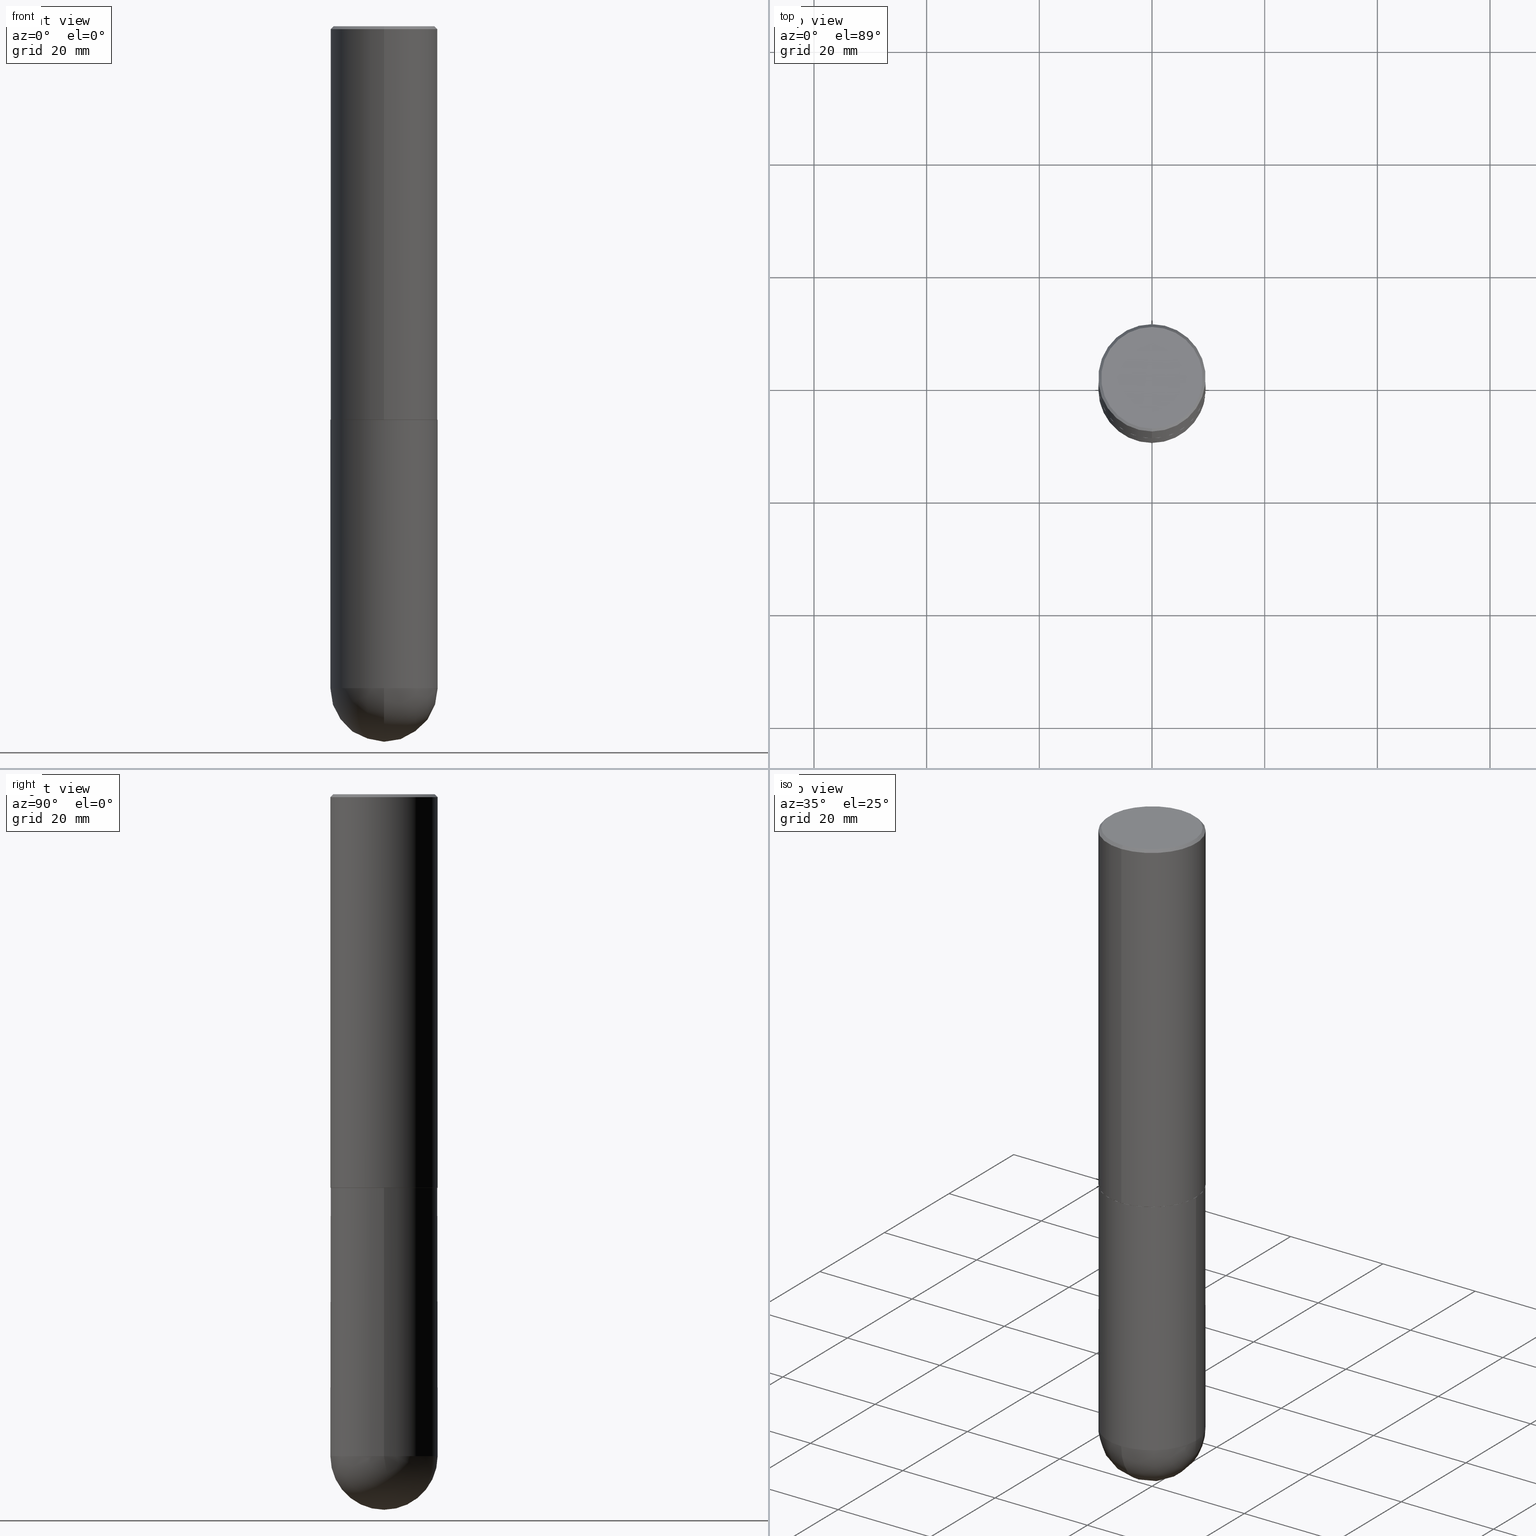
[diagram: canonical four-view strip — front | top / right | iso, engineering-drawing reading convention]
A machine part, canonical four-view strip (front | top / right | iso — engineering-drawing reading convention). The complete STEP part file that produces these views, byte-faithful:
ISO-10303-21;
HEADER;
FILE_DESCRIPTION (( 'STEP AP203' ),
    '1' );
FILE_NAME ('33116.STEP',
    '2024-02-21T17:50:50',
    ( '' ),
    ( '' ),
    'SwSTEP 2.0',
    'SolidWorks 2023',
    '' );
FILE_SCHEMA (( 'CONFIG_CONTROL_DESIGN' ));
ENDSEC;

DATA;
#1 = EDGE_LOOP ( 'NONE', ( #23, #118 ) ) ;
#2 = CIRCLE ( 'NONE', #322, 0.3739999999999999991 ) ;
#3 = APPLICATION_CONTEXT ( 'configuration controlled 3d designs of mechanical parts and assemblies' ) ;
#4 = VERTEX_POINT ( 'NONE', #304 ) ;
#5 = DIRECTION ( 'NONE',  ( -6.982962677686266711E-15, -1.000000000000000000, 3.492313078518903376E-15 ) ) ;
#6 = AXIS2_PLACEMENT_3D ( 'NONE', #104, #55, #289 ) ;
#7 = AXIS2_PLACEMENT_3D ( 'NONE', #391, #285, #170 ) ;
#8 = DIRECTION ( 'NONE',  ( -2.444888005473800237E-29, 3.492313078518902982E-15, 1.000000000000000000 ) ) ;
#9 = APPROVAL ( #294, 'UNSPECIFIED' ) ;
#10 = DIRECTION ( 'NONE',  ( -2.445468806185136877E-29, 3.491481338843145188E-15, 1.000000000000000000 ) ) ;
#11 = VECTOR ( 'NONE', #158, 39.37007874015748143 ) ;
#12 = APPROVAL_PERSON_ORGANIZATION ( #97, #67, #310 ) ;
#13 = ADVANCED_FACE ( 'NONE', ( #32 ), #184, .F. ) ;
#14 = DATE_TIME_ROLE ( 'creation_date' ) ;
#15 = AXIS2_PLACEMENT_3D ( 'NONE', #301, #339, #236 ) ;
#16 = CARTESIAN_POINT ( 'NONE',  ( 6.720997127047476541E-29, -9.600368652848465980E-15, -2.749000000000000110 ) ) ;
#17 = CARTESIAN_POINT ( 'NONE',  ( 6.725039217009124520E-29, -9.601573681818649859E-15, -2.750000000000000000 ) ) ;
#18 = COORDINATED_UNIVERSAL_TIME_OFFSET ( 5, 0, .BEHIND. ) ;
#19 = VERTEX_POINT ( 'NONE', #156 ) ;
#20 = DIRECTION ( 'NONE',  ( -6.982962677686265922E-15, -1.000000000000000000, 3.492313078518902587E-15 ) ) ;
#21 = DATE_AND_TIME ( #174, #22 ) ;
#22 = LOCAL_TIME ( 12, 50, 50.00000000000000000, #18 ) ;
#23 = ORIENTED_EDGE ( 'NONE', *, *, #76, .T. ) ;
#24 = DIRECTION ( 'NONE',  ( 1.000000000000000000, -6.982962677686265922E-15, 4.876176775795935793E-29 ) ) ;
#25 = EDGE_LOOP ( 'NONE', ( #297, #342, #185, #274 ) ) ;
#26 =( CONVERSION_BASED_UNIT ( 'INCH', #332 ) LENGTH_UNIT ( ) NAMED_UNIT ( #139 ) );
#27 = EDGE_LOOP ( 'NONE', ( #338, #171, #30, #54 ) ) ;
#28 = DIRECTION ( 'NONE',  ( -6.982962677686266711E-15, -1.000000000000000000, 2.921762560068730595E-15 ) ) ;
#29 = ORIENTED_EDGE ( 'NONE', *, *, #262, .F. ) ;
#30 = ORIENTED_EDGE ( 'NONE', *, *, #355, .F. ) ;
#31 = AXIS2_PLACEMENT_3D ( 'NONE', #75, #137, #326 ) ;
#32 = FACE_OUTER_BOUND ( 'NONE', #324, .T. ) ;
#33 = CIRCLE ( 'NONE', #241, 0.3750000000000004441 ) ;
#34 = VERTEX_POINT ( 'NONE', #93 ) ;
#35 = SECURITY_CLASSIFICATION ( '', '', #71 ) ;
#36 = DIRECTION ( 'NONE',  ( -1.000000000000000000, 6.982962677686266711E-15, -4.883557194083113462E-29 ) ) ;
#37 = ADVANCED_FACE ( 'NONE', ( #353 ), #226, .T. ) ;
#38 = AXIS2_PLACEMENT_3D ( 'NONE', #122, #127, #385 ) ;
#39 = COORDINATED_UNIVERSAL_TIME_OFFSET ( 5, 0, .BEHIND. ) ;
#40 = FACE_OUTER_BOUND ( 'NONE', #214, .T. ) ;
#41 = CONICAL_SURFACE ( 'NONE', #15, 0.3739999999999999991, 0.7853981633980288146 ) ;
#42 = CC_DESIGN_APPROVAL ( #172, ( #330 ) ) ;
#43 =( LENGTH_UNIT ( ) NAMED_UNIT ( * ) SI_UNIT ( $, .METRE. ) );
#44 = CALENDAR_DATE ( 2024, 21, 2 ) ;
#45 = CC_DESIGN_DATE_AND_TIME_ASSIGNMENT ( #361, #279, ( #35 ) ) ;
#46 = AXIS2_PLACEMENT_3D ( 'NONE', #333, #256, #228 ) ;
#47 = CC_DESIGN_APPROVAL ( #67, ( #35 ) ) ;
#48 = LINE ( 'NONE', #168, #208 ) ;
#49 =( NAMED_UNIT ( * ) SI_UNIT ( $, .STERADIAN. ) SOLID_ANGLE_UNIT ( ) );
#50 = DIRECTION ( 'NONE',  ( -2.444888005473800237E-29, 3.492313078518902982E-15, 1.000000000000000000 ) ) ;
#51 = DIRECTION ( 'NONE',  ( -2.445468806185136597E-29, 3.491481338843145583E-15, 1.000000000000000000 ) ) ;
#52 = ORIENTED_EDGE ( 'NONE', *, *, #311, .F. ) ;
#53 = DIRECTION ( 'NONE',  ( 2.444888005473799957E-29, -3.492313078518902982E-15, -1.000000000000000000 ) ) ;
#54 = ORIENTED_EDGE ( 'NONE', *, *, #286, .F. ) ;
#55 = DIRECTION ( 'NONE',  ( -2.444888005473799957E-29, 3.492313078518902982E-15, 1.000000000000000000 ) ) ;
#56 = EDGE_CURVE ( 'NONE', #175, #138, #252, .T. ) ;
#57 = CIRCLE ( 'NONE', #165, 0.3750000000000001110 ) ;
#58 = DIRECTION ( 'NONE',  ( 1.000000000000000000, -6.982962677686270655E-15, 0.000000000000000000 ) ) ;
#59 = ORIENTED_EDGE ( 'NONE', *, *, #178, .F. ) ;
#60 = EDGE_CURVE ( 'NONE', #175, #34, #161, .T. ) ;
#61 = DIRECTION ( 'NONE',  ( -6.982962677686265922E-15, -1.000000000000000000, 3.492313078518902982E-15 ) ) ;
#62 = COORDINATED_UNIVERSAL_TIME_OFFSET ( 5, 0, .BEHIND. ) ;
#63 = VECTOR ( 'NONE', #8, 39.37007874015748143 ) ;
#64 = EDGE_CURVE ( 'NONE', #19, #173, #393, .T. ) ;
#65 =( NAMED_UNIT ( * ) PLANE_ANGLE_UNIT ( ) SI_UNIT ( $, .RADIAN. ) );
#66 = LINE ( 'NONE', #121, #283 ) ;
#67 = APPROVAL ( #249, 'UNSPECIFIED' ) ;
#68 = DATE_AND_TIME ( #186, #360 ) ;
#69 = AXIS2_PLACEMENT_3D ( 'NONE', #388, #250, #318 ) ;
#70 =( GEOMETRIC_REPRESENTATION_CONTEXT ( 3 ) GLOBAL_UNCERTAINTY_ASSIGNED_CONTEXT ( ( #376 ) ) GLOBAL_UNIT_ASSIGNED_CONTEXT ( ( #26, #65, #49 ) ) REPRESENTATION_CONTEXT ( 'NONE', 'WORKASPACE' ) );
#71 = SECURITY_CLASSIFICATION_LEVEL ( 'unclassified' ) ;
#72 = CLOSED_SHELL ( 'NONE', ( #96, #234, #120, #181, #74, #81, #13, #390 ) ) ;
#73 = PERSON_AND_ORGANIZATION_ROLE ( 'creator' ) ;
#74 = ADVANCED_FACE ( 'NONE', ( #84 ), #254, .T. ) ;
#75 = CARTESIAN_POINT ( 'NONE',  ( -6.895002054019779943E-45, 9.848919785183189324E-31, 2.820170919315211210E-16 ) ) ;
#76 = EDGE_CURVE ( 'NONE', #335, #112, #354, .T. ) ;
#77 = CARTESIAN_POINT ( 'NONE',  ( 2.660982545421643429E-15, 0.3739999999999903957, -2.750000000000000444 ) ) ;
#78 = CARTESIAN_POINT ( 'NONE',  ( 0.000000000000000000, 0.000000000000000000, 0.000000000000000000 ) ) ;
#79 = ORIENTED_EDGE ( 'NONE', *, *, #227, .T. ) ;
#80 = LINE ( 'NONE', #177, #101 ) ;
#81 = ADVANCED_FACE ( 'NONE', ( #179 ), #41, .T. ) ;
#82 = DIRECTION ( 'NONE',  ( -2.445468806185136597E-29, 3.491481338843145583E-15, 1.000000000000000000 ) ) ;
#83 = ORIENTED_EDGE ( 'NONE', *, *, #355, .T. ) ;
#84 = FACE_OUTER_BOUND ( 'NONE', #264, .T. ) ;
#85 = DIRECTION ( 'NONE',  ( -4.851104656540959542E-15, -0.7071067811865493491, -0.7071067811865456854 ) ) ;
#86 = CIRCLE ( 'NONE', #69, 0.3750000000000001110 ) ;
#87 = ORIENTED_EDGE ( 'NONE', *, *, #220, .F. ) ;
#88 = DIRECTION ( 'NONE',  ( -7.105427357600999492E-15, -1.000000000000000000, 0.000000000000000000 ) ) ;
#89 = APPLICATION_PROTOCOL_DEFINITION ( 'international standard', 'config_control_design', 1994, #3 ) ;
#90 = ORIENTED_EDGE ( 'NONE', *, *, #162, .T. ) ;
#91 = CARTESIAN_POINT ( 'NONE',  ( 0.000000000000000000, 0.000000000000000000, 0.000000000000000000 ) ) ;
#92 = PERSON_AND_ORGANIZATION_ROLE ( 'design_owner' ) ;
#93 = CARTESIAN_POINT ( 'NONE',  ( -2.618611004132286119E-15, -0.3750000000000100475, -2.748999999999999222 ) ) ;
#94 = MANIFOLD_SOLID_BREP ( 'Body-Move/Copy2[1]', #305 ) ;
#95 = CARTESIAN_POINT ( 'NONE',  ( 1.097917345069237163E-28, -1.662228356028959886E-14, -4.625000000000000000 ) ) ;
#96 = ADVANCED_FACE ( 'NONE', ( #202 ), #132, .T. ) ;
#97 = PERSON_AND_ORGANIZATION ( #197, #230 ) ;
#98 = DIRECTION ( 'NONE',  ( 6.982962677686265922E-15, 1.000000000000000000, 0.000000000000000000 ) ) ;
#99 = APPLICATION_CONTEXT ( 'configuration controlled 3d designs of mechanical parts and assemblies' ) ;
#100 = PRODUCT_DEFINITION_SHAPE ( 'NONE', 'NONE',  #330 ) ;
#101 = VECTOR ( 'NONE', #141, 39.37007874015748143 ) ;
#102 = CC_DESIGN_DATE_AND_TIME_ASSIGNMENT ( #163, #14, ( #330 ) ) ;
#103 = CARTESIAN_POINT ( 'NONE',  ( 2.618611004132463218E-15, 0.3749999999999838463, -4.625000000000000888 ) ) ;
#104 = CARTESIAN_POINT ( 'NONE',  ( 4.889776010947621353E-31, -6.984626157037836483E-17, -0.02000000000000008715 ) ) ;
#105 = AXIS2_PLACEMENT_3D ( 'NONE', #95, #36, #215 ) ;
#106 = ORIENTED_EDGE ( 'NONE', *, *, #262, .T. ) ;
#107 = DIRECTION ( 'NONE',  ( 6.982962677686266711E-15, 1.000000000000000000, -3.494488891895537218E-15 ) ) ;
#108 = VERTEX_POINT ( 'NONE', #401 ) ;
#109 = ORIENTED_EDGE ( 'NONE', *, *, #227, .F. ) ;
#110 = DIRECTION ( 'NONE',  ( -6.982962677686266711E-15, -1.000000000000000000, 3.494488891895537218E-15 ) ) ;
#111 = DIRECTION ( 'NONE',  ( -2.444888005473799957E-29, 3.492313078518902982E-15, 1.000000000000000000 ) ) ;
#112 = VERTEX_POINT ( 'NONE', #239 ) ;
#113 = SPHERICAL_SURFACE ( 'NONE', #105, 0.3750000000000003886 ) ;
#114 = ORIENTED_EDGE ( 'NONE', *, *, #193, .T. ) ;
#115 = EDGE_CURVE ( 'NONE', #237, #138, #359, .T. ) ;
#116 = DIRECTION ( 'NONE',  ( 1.000000000000000000, -6.982962677686266711E-15, 0.000000000000000000 ) ) ;
#117 = AXIS2_PLACEMENT_3D ( 'NONE', #130, #281, #98 ) ;
#118 = ORIENTED_EDGE ( 'NONE', *, *, #220, .T. ) ;
#119 = PERSON_AND_ORGANIZATION ( #197, #230 ) ;
#120 = ADVANCED_FACE ( 'NONE', ( #147 ), #313, .T. ) ;
#121 = CARTESIAN_POINT ( 'NONE',  ( -2.611628041454596160E-15, -0.3740000000000096581, -2.749999999999998224 ) ) ;
#122 = CARTESIAN_POINT ( 'NONE',  ( 4.889776010947621353E-31, -6.984626157037836483E-17, -0.02000000000000008715 ) ) ;
#123 = DIRECTION ( 'NONE',  ( 6.982962677686266711E-15, 1.000000000000000000, -2.913971193241878005E-15 ) ) ;
#124 = FACE_OUTER_BOUND ( 'NONE', #136, .T. ) ;
#125 = PERSON_AND_ORGANIZATION ( #197, #230 ) ;
#126 = CIRCLE ( 'NONE', #187, 0.3739999999999999991 ) ;
#127 = DIRECTION ( 'NONE',  ( 2.444888005473799957E-29, -3.492313078518902982E-15, -1.000000000000000000 ) ) ;
#128 = AXIS2_PLACEMENT_3D ( 'NONE', #91, #347, #314 ) ;
#129 = APPROVAL_DATE_TIME ( #68, #172 ) ;
#130 = CARTESIAN_POINT ( 'NONE',  ( 1.097917345069237163E-28, -1.662228356028959886E-14, -4.625000000000000000 ) ) ;
#131 = EDGE_CURVE ( 'NONE', #232, #19, #57, .T. ) ;
#132 = CONICAL_SURFACE ( 'NONE', #334, 0.3739999999999999991, 0.7853981633980288146 ) ;
#133 = CYLINDRICAL_SURFACE ( 'NONE', #229, 0.3750000000000002220 ) ;
#134 = DIRECTION ( 'NONE',  ( -1.000000000000000000, 7.105427357601001070E-15, -4.926315508542082329E-29 ) ) ;
#135 = CARTESIAN_POINT ( 'NONE',  ( 6.723442015052948549E-29, -9.603860965926982214E-15, -2.749999999999999556 ) ) ;
#136 = EDGE_LOOP ( 'NONE', ( #83, #412, #155, #29 ) ) ;
#137 = DIRECTION ( 'NONE',  ( -2.444888005473799957E-29, 3.492313078518902982E-15, 1.000000000000000000 ) ) ;
#138 = VERTEX_POINT ( 'NONE', #370 ) ;
#139 = DIMENSIONAL_EXPONENTS ( 1.000000000000000000, 0.000000000000000000, 0.000000000000000000, 0.000000000000000000, 0.000000000000000000, 0.000000000000000000, 0.000000000000000000 ) ;
#140 = DIRECTION ( 'NONE',  ( 2.444888005473799676E-29, -3.492313078518902982E-15, -1.000000000000000000 ) ) ;
#141 = DIRECTION ( 'NONE',  ( -2.445468806185136877E-29, 3.491481338843145188E-15, 1.000000000000000000 ) ) ;
#142 = CARTESIAN_POINT ( 'NONE',  ( 6.723442015052948549E-29, -9.603860965926982214E-15, -2.749999999999999556 ) ) ;
#143 = ORIENTED_EDGE ( 'NONE', *, *, #131, .F. ) ;
#144 = EDGE_CURVE ( 'NONE', #4, #108, #247, .T. ) ;
#145 = PLANE ( 'NONE',  #46 ) ;
#146 = ORIENTED_EDGE ( 'NONE', *, *, #178, .T. ) ;
#147 = FACE_OUTER_BOUND ( 'NONE', #404, .T. ) ;
#148 = ORIENTED_EDGE ( 'NONE', *, *, #144, .F. ) ;
#149 = FACE_OUTER_BOUND ( 'NONE', #369, .T. ) ;
#150 = ORIENTED_EDGE ( 'NONE', *, *, #131, .T. ) ;
#151 = DIRECTION ( 'NONE',  ( -2.444888005473799957E-29, 3.492313078518902982E-15, 1.000000000000000000 ) ) ;
#152 = AXIS2_PLACEMENT_3D ( 'NONE', #176, #410, #110 ) ;
#153 = AXIS2_PLACEMENT_3D ( 'NONE', #364, #51, #290 ) ;
#154 = AXIS2_PLACEMENT_3D ( 'NONE', #295, #140, #263 ) ;
#155 = ORIENTED_EDGE ( 'NONE', *, *, #115, .F. ) ;
#156 = CARTESIAN_POINT ( 'NONE',  ( -2.664535259100265651E-15, -0.3750000000000165978, -4.624999999999999112 ) ) ;
#157 = EDGE_CURVE ( 'NONE', #269, #19, #240, .T. ) ;
#158 = DIRECTION ( 'NONE',  ( 4.937700262164543309E-15, 0.7071067811865444641, -0.7071067811865505703 ) ) ;
#159 = COORDINATED_UNIVERSAL_TIME_OFFSET ( 5, 0, .BEHIND. ) ;
#160 = PERSON_AND_ORGANIZATION_ROLE ( 'creator' ) ;
#161 = CIRCLE ( 'NONE', #392, 0.3750000000000004441 ) ;
#162 = EDGE_CURVE ( 'NONE', #232, #108, #80, .T. ) ;
#163 = DATE_AND_TIME ( #319, #222 ) ;
#164 = CARTESIAN_POINT ( 'NONE',  ( 0.3750000000000001110, -2.618611004132350411E-15, 1.828566290923476483E-29 ) ) ;
#165 = AXIS2_PLACEMENT_3D ( 'NONE', #268, #405, #231 ) ;
#166 = CARTESIAN_POINT ( 'NONE',  ( -6.895002054019779943E-45, 9.848919785183189324E-31, 2.820170919315211210E-16 ) ) ;
#167 = CC_DESIGN_APPROVAL ( #9, ( #277 ) ) ;
#168 = CARTESIAN_POINT ( 'NONE',  ( 2.657429831742841742E-15, 0.3739999999999903957, -2.750000000000000444 ) ) ;
#169 = DIRECTION ( 'NONE',  ( -2.444888005473799957E-29, 3.492313078518902982E-15, 1.000000000000000000 ) ) ;
#170 = DIRECTION ( 'NONE',  ( 1.000000000000000000, -6.982962677686270655E-15, 0.000000000000000000 ) ) ;
#171 = ORIENTED_EDGE ( 'NONE', *, *, #345, .T. ) ;
#172 = APPROVAL ( #243, 'UNSPECIFIED' ) ;
#173 = VERTEX_POINT ( 'NONE', #265 ) ;
#174 = CALENDAR_DATE ( 2024, 21, 2 ) ;
#175 = VERTEX_POINT ( 'NONE', #282 ) ;
#176 = CARTESIAN_POINT ( 'NONE',  ( 4.889776010947621353E-31, -6.984626157037836483E-17, -0.02000000000000008715 ) ) ;
#177 = CARTESIAN_POINT ( 'NONE',  ( -0.3750000000000001110, 2.664535259100376486E-15, -1.844600658845590159E-29 ) ) ;
#178 = EDGE_CURVE ( 'NONE', #138, #237, #190, .T. ) ;
#179 = FACE_OUTER_BOUND ( 'NONE', #375, .T. ) ;
#180 = ORIENTED_EDGE ( 'NONE', *, *, #374, .F. ) ;
#181 = ADVANCED_FACE ( 'NONE', ( #306 ), #207, .T. ) ;
#182 = ORIENTED_EDGE ( 'NONE', *, *, #60, .F. ) ;
#183 = CARTESIAN_POINT ( 'NONE',  ( -2.618611004132351594E-15, -0.3750000000000002220, 1.309617404444589506E-15 ) ) ;
#184 = PLANE ( 'NONE',  #225 ) ;
#185 = ORIENTED_EDGE ( 'NONE', *, *, #337, .F. ) ;
#186 = CALENDAR_DATE ( 2024, 21, 2 ) ;
#187 = AXIS2_PLACEMENT_3D ( 'NONE', #142, #266, #408 ) ;
#188 = LOCAL_TIME ( 12, 50, 50.00000000000000000, #159 ) ;
#189 = ADVANCED_FACE ( 'NONE', ( #149 ), #145, .F. ) ;
#190 = CIRCLE ( 'NONE', #152, 0.3749999999999999445 ) ;
#191 = EDGE_CURVE ( 'NONE', #108, #4, #396, .T. ) ;
#192 = DATE_AND_TIME ( #312, #394 ) ;
#193 = EDGE_CURVE ( 'NONE', #372, #232, #86, .T. ) ;
#194 = CARTESIAN_POINT ( 'NONE',  ( 1.097917345069237163E-28, -1.662228356028959886E-14, -4.625000000000000000 ) ) ;
#195 = EDGE_CURVE ( 'NONE', #269, #372, #287, .T. ) ;
#196 = FACE_OUTER_BOUND ( 'NONE', #1, .T. ) ;
#197 = PERSON ( 'UNSPECIFIED', 'UNSPECIFIED', 'UNSPECIFIED', ('UNSPECIFIED'), ('UNSPECIFIED'), ('UNSPECIFIED') ) ;
#198 = VECTOR ( 'NONE', #85, 39.37007874015748143 ) ;
#199 = ORIENTED_EDGE ( 'NONE', *, *, #345, .F. ) ;
#200 = CARTESIAN_POINT ( 'NONE',  ( -2.572686749164323153E-15, -0.3750000000000000555, -0.01999999999999877570 ) ) ;
#201 = ORIENTED_EDGE ( 'NONE', *, *, #157, .T. ) ;
#202 = FACE_OUTER_BOUND ( 'NONE', #27, .T. ) ;
#203 = ORIENTED_EDGE ( 'NONE', *, *, #56, .F. ) ;
#204 = VERTEX_POINT ( 'NONE', #356 ) ;
#205 = CARTESIAN_POINT ( 'NONE',  ( 1.131029322860625676E-28, -1.614810119214955014E-14, -4.625000000000000000 ) ) ;
#206 = ADVANCED_FACE ( 'NONE', ( #40 ), #212, .T. ) ;
#207 = CONICAL_SURFACE ( 'NONE', #38, 0.3749999999999999445, 0.7853981633974473908 ) ;
#208 = VECTOR ( 'NONE', #320, 39.37007874015748143 ) ;
#209 = ORIENTED_EDGE ( 'NONE', *, *, #245, .F. ) ;
#210 = DIRECTION ( 'NONE',  ( -6.982962677686265922E-15, -1.000000000000000000, 2.913971193241877216E-15 ) ) ;
#211 = ORIENTED_EDGE ( 'NONE', *, *, #245, .T. ) ;
#212 = CYLINDRICAL_SURFACE ( 'NONE', #153, 0.3750000000000001110 ) ;
#213 = CARTESIAN_POINT ( 'NONE',  ( 6.723442015052949670E-29, -9.603860965926983792E-15, -2.750000000000000000 ) ) ;
#214 = EDGE_LOOP ( 'NONE', ( #244, #150, #380, #233, #242 ) ) ;
#215 = DIRECTION ( 'NONE',  ( 6.982962677686266711E-15, 1.000000000000000000, -2.913971193241878005E-15 ) ) ;
#216 = EDGE_CURVE ( 'NONE', #112, #237, #255, .T. ) ;
#217 = APPLICATION_PROTOCOL_DEFINITION ( 'international standard', 'config_control_design', 1994, #99 ) ;
#218 = AXIS2_PLACEMENT_3D ( 'NONE', #205, #336, #58 ) ;
#219 = CARTESIAN_POINT ( 'NONE',  ( -2.572686749164323153E-15, -0.3750000000000000555, -0.01999999999999877570 ) ) ;
#220 = EDGE_CURVE ( 'NONE', #112, #335, #317, .T. ) ;
#221 = ADVANCED_FACE ( 'NONE', ( #260 ), #406, .T. ) ;
#222 = LOCAL_TIME ( 12, 50, 50.00000000000000000, #316 ) ;
#223 = PERSON_AND_ORGANIZATION ( #197, #230 ) ;
#224 = MANIFOLD_SOLID_BREP ( 'Body-Move/Copy2[2]', #72 ) ;
#225 = AXIS2_PLACEMENT_3D ( 'NONE', #213, #341, #61 ) ;
#226 = SPHERICAL_SURFACE ( 'NONE', #307, 0.3750000000000003886 ) ;
#227 = EDGE_CURVE ( 'NONE', #381, #204, #126, .T. ) ;
#228 = DIRECTION ( 'NONE',  ( -1.000000000000000000, 6.982962677686265922E-15, -4.876176775795935793E-29 ) ) ;
#229 = AXIS2_PLACEMENT_3D ( 'NONE', #387, #151, #5 ) ;
#230 = ORGANIZATION ( 'UNSPECIFIED', 'UNSPECIFIED', '' ) ;
#231 = DIRECTION ( 'NONE',  ( 1.000000000000000000, -6.982962677686270655E-15, 0.000000000000000000 ) ) ;
#232 = VERTEX_POINT ( 'NONE', #383 ) ;
#233 = ORIENTED_EDGE ( 'NONE', *, *, #311, .T. ) ;
#234 = ADVANCED_FACE ( 'NONE', ( #124 ), #133, .T. ) ;
#235 = ORIENTED_EDGE ( 'NONE', *, *, #115, .T. ) ;
#236 = DIRECTION ( 'NONE',  ( -6.982962677686266711E-15, -1.000000000000000000, 2.921762560068730595E-15 ) ) ;
#237 = VERTEX_POINT ( 'NONE', #219 ) ;
#238 = ORIENTED_EDGE ( 'NONE', *, *, #191, .T. ) ;
#239 = CARTESIAN_POINT ( 'NONE',  ( -2.504081769186607427E-15, -0.3549999999999996492, 1.521788234805730129E-15 ) ) ;
#240 = CIRCLE ( 'NONE', #272, 0.3750000000000003886 ) ;
#241 = AXIS2_PLACEMENT_3D ( 'NONE', #16, #253, #292 ) ;
#242 = ORIENTED_EDGE ( 'NONE', *, *, #191, .F. ) ;
#243 = APPROVAL_STATUS ( 'not_yet_approved' ) ;
#244 = ORIENTED_EDGE ( 'NONE', *, *, #162, .F. ) ;
#245 = EDGE_CURVE ( 'NONE', #335, #138, #275, .T. ) ;
#246 = DIRECTION ( 'NONE',  ( -4.937700262167413974E-15, -0.7071067811869555797, 0.7071067811861394548 ) ) ;
#247 = CIRCLE ( 'NONE', #276, 0.3750000000000000555 ) ;
#248 = SHAPE_DEFINITION_REPRESENTATION ( #100, #400 ) ;
#249 = APPROVAL_STATUS ( 'not_yet_approved' ) ;
#250 = DIRECTION ( 'NONE',  ( -2.445468806185136597E-29, 3.491481338843145583E-15, 1.000000000000000000 ) ) ;
#251 = AXIS2_PLACEMENT_3D ( 'NONE', #403, #377, #273 ) ;
#252 = LINE ( 'NONE', #357, #296 ) ;
#253 = DIRECTION ( 'NONE',  ( -2.444888005473799957E-29, 3.492313078518902982E-15, 1.000000000000000000 ) ) ;
#254 = CYLINDRICAL_SURFACE ( 'NONE', #257, 0.3750000000000002220 ) ;
#255 = LINE ( 'NONE', #200, #198 ) ;
#256 = DIRECTION ( 'NONE',  ( 2.438088387897960049E-29, -3.491481338843145188E-15, -1.000000000000000000 ) ) ;
#257 = AXIS2_PLACEMENT_3D ( 'NONE', #78, #111, #323 ) ;
#258 = ORIENTED_EDGE ( 'NONE', *, *, #195, .F. ) ;
#259 = DIRECTION ( 'NONE',  ( -2.444888005473799957E-29, 3.492313078518902982E-15, 1.000000000000000000 ) ) ;
#260 = FACE_OUTER_BOUND ( 'NONE', #329, .T. ) ;
#261 = APPROVAL_DATE_TIME ( #21, #9 ) ;
#262 = EDGE_CURVE ( 'NONE', #34, #237, #280, .T. ) ;
#263 = DIRECTION ( 'NONE',  ( 6.982962677686265922E-15, 1.000000000000000000, -3.492313078518902982E-15 ) ) ;
#264 = EDGE_LOOP ( 'NONE', ( #203, #267, #106, #59 ) ) ;
#265 = CARTESIAN_POINT ( 'NONE',  ( 0.3750000000000001110, -1.549344844111645238E-14, -4.625000000000000000 ) ) ;
#266 = DIRECTION ( 'NONE',  ( -2.444888005473799957E-29, 3.492313078518902982E-15, 1.000000000000000000 ) ) ;
#267 = ORIENTED_EDGE ( 'NONE', *, *, #60, .T. ) ;
#268 = CARTESIAN_POINT ( 'NONE',  ( 1.131029322860625676E-28, -1.614810119214955014E-14, -4.625000000000000000 ) ) ;
#269 = VERTEX_POINT ( 'NONE', #350 ) ;
#270 = LINE ( 'NONE', #164, #343 ) ;
#271 = ORIENTED_EDGE ( 'NONE', *, *, #216, .T. ) ;
#272 = AXIS2_PLACEMENT_3D ( 'NONE', #411, #134, #88 ) ;
#273 = DIRECTION ( 'NONE',  ( 1.000000000000000000, -6.982962677686266711E-15, 0.000000000000000000 ) ) ;
#274 = ORIENTED_EDGE ( 'NONE', *, *, #64, .F. ) ;
#275 = LINE ( 'NONE', #346, #11 ) ;
#276 = AXIS2_PLACEMENT_3D ( 'NONE', #17, #379, #116 ) ;
#277 = PRODUCT_DEFINITION_FORMATION_WITH_SPECIFIED_SOURCE ( 'ANY', '', #398, .NOT_KNOWN. ) ;
#278 = CC_DESIGN_PERSON_AND_ORGANIZATION_ASSIGNMENT ( #389, #352, ( #35 ) ) ;
#279 = DATE_TIME_ROLE ( 'classification_date' ) ;
#280 = LINE ( 'NONE', #183, #63 ) ;
#281 = DIRECTION ( 'NONE',  ( 1.000000000000000000, -6.982962677686265922E-15, 4.883557194083112340E-29 ) ) ;
#282 = CARTESIAN_POINT ( 'NONE',  ( 2.664535259100411196E-15, 0.3749999999999907851, -2.749000000000000998 ) ) ;
#283 = VECTOR ( 'NONE', #246, 39.37007874015748143 ) ;
#284 = CC_DESIGN_PERSON_AND_ORGANIZATION_ASSIGNMENT ( #125, #351, ( #277 ) ) ;
#285 = DIRECTION ( 'NONE',  ( -2.445468806185136597E-29, 3.491481338843145583E-15, 1.000000000000000000 ) ) ;
#286 = EDGE_CURVE ( 'NONE', #204, #34, #66, .T. ) ;
#287 = CIRCLE ( 'NONE', #117, 0.3750000000000003886 ) ;
#288 = APPROVAL_PERSON_ORGANIZATION ( #344, #172, #382 ) ;
#289 = DIRECTION ( 'NONE',  ( -6.982962677686266711E-15, -1.000000000000000000, 3.494488891895537218E-15 ) ) ;
#290 = DIRECTION ( 'NONE',  ( 1.000000000000000000, -6.982962677686265922E-15, 4.876176775795935793E-29 ) ) ;
#291 = CARTESIAN_POINT ( 'NONE',  ( 4.889776010947621353E-31, -6.984626157037836483E-17, -0.02000000000000008715 ) ) ;
#292 = DIRECTION ( 'NONE',  ( -6.982962677686265922E-15, -1.000000000000000000, 2.913971193241877216E-15 ) ) ;
#293 = ORIENTED_EDGE ( 'NONE', *, *, #286, .T. ) ;
#294 = APPROVAL_STATUS ( 'not_yet_approved' ) ;
#295 = CARTESIAN_POINT ( 'NONE',  ( 2.478951750578621842E-15, 0.3549999999999996492, -1.098762596908448645E-15 ) ) ;
#296 = VECTOR ( 'NONE', #50, 39.37007874015748143 ) ;
#297 = ORIENTED_EDGE ( 'NONE', *, *, #157, .F. ) ;
#298 = CC_DESIGN_SECURITY_CLASSIFICATION ( #35, ( #277 ) ) ;
#299 = DIRECTION ( 'NONE',  ( -2.444888005473799957E-29, 3.492313078518902982E-15, 1.000000000000000000 ) ) ;
#300 = ORIENTED_EDGE ( 'NONE', *, *, #76, .F. ) ;
#301 = CARTESIAN_POINT ( 'NONE',  ( 6.723442015052948549E-29, -9.603860965926982214E-15, -2.749999999999999556 ) ) ;
#302 = ADVANCED_FACE ( 'NONE', ( #362 ), #113, .T. ) ;
#303 = ORIENTED_EDGE ( 'NONE', *, *, #193, .F. ) ;
#304 = CARTESIAN_POINT ( 'NONE',  ( 0.3750000000000000555, -1.222018468595100145E-14, -2.750000000000000000 ) ) ;
#305 = CLOSED_SHELL ( 'NONE', ( #221, #302, #37, #189, #206 ) ) ;
#306 = FACE_OUTER_BOUND ( 'NONE', #407, .T. ) ;
#307 = AXIS2_PLACEMENT_3D ( 'NONE', #194, #358, #123 ) ;
#308 = MECHANICAL_CONTEXT ( 'NONE', #3, 'mechanical' ) ;
#309 = EDGE_LOOP ( 'NONE', ( #258, #201, #143, #303 ) ) ;
#310 = APPROVAL_ROLE ( '' ) ;
#311 = EDGE_CURVE ( 'NONE', #173, #4, #270, .T. ) ;
#312 = CALENDAR_DATE ( 2024, 21, 2 ) ;
#313 = CONICAL_SURFACE ( 'NONE', #378, 0.3749999999999999445, 0.7853981633974473908 ) ;
#314 = DIRECTION ( 'NONE',  ( 1.000000000000000000, 0.000000000000000000, 0.000000000000000000 ) ) ;
#315 = DESIGN_CONTEXT ( 'detailed design', #99, 'design' ) ;
#316 = COORDINATED_UNIVERSAL_TIME_OFFSET ( 5, 0, .BEHIND. ) ;
#317 = CIRCLE ( 'NONE', #31, 0.3549999999999996492 ) ;
#318 = DIRECTION ( 'NONE',  ( 1.000000000000000000, -6.982962677686270655E-15, 0.000000000000000000 ) ) ;
#319 = CALENDAR_DATE ( 2024, 21, 2 ) ;
#320 = DIRECTION ( 'NONE',  ( 5.024295867790978808E-15, 0.7071067811869604647, 0.7071067811861345698 ) ) ;
#321 = AXIS2_PLACEMENT_3D ( 'NONE', #166, #169, #20 ) ;
#322 = AXIS2_PLACEMENT_3D ( 'NONE', #135, #367, #363 ) ;
#323 = DIRECTION ( 'NONE',  ( -6.982962677686266711E-15, -1.000000000000000000, 3.492313078518903376E-15 ) ) ;
#324 = EDGE_LOOP ( 'NONE', ( #180, #109 ) ) ;
#325 = CARTESIAN_POINT ( 'NONE',  ( 6.720997127047476541E-29, -9.600368652848465980E-15, -2.749000000000000110 ) ) ;
#326 = DIRECTION ( 'NONE',  ( -6.982962677686265922E-15, -1.000000000000000000, 3.492313078518902587E-15 ) ) ;
#327 = PERSON_AND_ORGANIZATION ( #197, #230 ) ;
#328 = PLANE ( 'NONE',  #154 ) ;
#329 = EDGE_LOOP ( 'NONE', ( #114, #90, #148, #52, #409 ) ) ;
#330 = PRODUCT_DEFINITION ( 'UNKNOWN', '', #277, #315 ) ;
#331 = CARTESIAN_POINT ( 'NONE',  ( 6.723442015052948549E-29, -9.603860965926982214E-15, -2.749999999999999556 ) ) ;
#332 = LENGTH_MEASURE_WITH_UNIT ( LENGTH_MEASURE( 0.02539999999999999897 ), #43 );
#333 = CARTESIAN_POINT ( 'NONE',  ( 2.618611004132417464E-15, 0.3749999999999903966, -2.750000000000000888 ) ) ;
#334 = AXIS2_PLACEMENT_3D ( 'NONE', #331, #259, #28 ) ;
#335 = VERTEX_POINT ( 'NONE', #348 ) ;
#336 = DIRECTION ( 'NONE',  ( -2.445468806185136597E-29, 3.491481338843145583E-15, 1.000000000000000000 ) ) ;
#337 = EDGE_CURVE ( 'NONE', #173, #372, #386, .T. ) ;
#338 = ORIENTED_EDGE ( 'NONE', *, *, #374, .T. ) ;
#339 = DIRECTION ( 'NONE',  ( -2.444888005473799957E-29, 3.492313078518902982E-15, 1.000000000000000000 ) ) ;
#340 = PRODUCT_RELATED_PRODUCT_CATEGORY ( 'detail', '', ( #398 ) ) ;
#341 = DIRECTION ( 'NONE',  ( -2.444888005473799676E-29, 3.492313078518902982E-15, 1.000000000000000000 ) ) ;
#342 = ORIENTED_EDGE ( 'NONE', *, *, #195, .T. ) ;
#343 = VECTOR ( 'NONE', #10, 39.37007874015748143 ) ;
#344 = PERSON_AND_ORGANIZATION ( #197, #230 ) ;
#345 = EDGE_CURVE ( 'NONE', #381, #175, #48, .T. ) ;
#346 = CARTESIAN_POINT ( 'NONE',  ( 2.618611004132350016E-15, 0.3749999999999998890, -0.02000000000000139513 ) ) ;
#347 = DIRECTION ( 'NONE',  ( 0.000000000000000000, 0.000000000000000000, 1.000000000000000000 ) ) ;
#348 = CARTESIAN_POINT ( 'NONE',  ( 2.548781377355486324E-15, 0.3549999999999996492, -9.577540509426880847E-16 ) ) ;
#349 = CC_DESIGN_PERSON_AND_ORGANIZATION_ASSIGNMENT ( #223, #160, ( #277 ) ) ;
#350 = CARTESIAN_POINT ( 'NONE',  ( 1.191225862093391378E-28, -1.790862693487176734E-14, -5.000000000000000000 ) ) ;
#351 = PERSON_AND_ORGANIZATION_ROLE ( 'design_supplier' ) ;
#352 = PERSON_AND_ORGANIZATION_ROLE ( 'classification_officer' ) ;
#353 = FACE_OUTER_BOUND ( 'NONE', #25, .T. ) ;
#354 = CIRCLE ( 'NONE', #321, 0.3549999999999996492 ) ;
#355 = EDGE_CURVE ( 'NONE', #34, #175, #33, .T. ) ;
#356 = CARTESIAN_POINT ( 'NONE',  ( -2.611628041454596160E-15, -0.3740000000000096581, -2.749999999999998224 ) ) ;
#357 = CARTESIAN_POINT ( 'NONE',  ( 2.664535259100376880E-15, 0.3750000000000002220, -1.309617404444589506E-15 ) ) ;
#358 = DIRECTION ( 'NONE',  ( -1.000000000000000000, 6.982962677686266711E-15, -4.883557194083113462E-29 ) ) ;
#359 = CIRCLE ( 'NONE', #6, 0.3749999999999999445 ) ;
#360 = LOCAL_TIME ( 12, 50, 50.00000000000000000, #62 ) ;
#361 = DATE_AND_TIME ( #44, #188 ) ;
#362 = FACE_OUTER_BOUND ( 'NONE', #309, .T. ) ;
#363 = DIRECTION ( 'NONE',  ( -6.982962677686266711E-15, -1.000000000000000000, 2.921762560068730595E-15 ) ) ;
#364 = CARTESIAN_POINT ( 'NONE',  ( 0.000000000000000000, 0.000000000000000000, 0.000000000000000000 ) ) ;
#365 = AXIS2_PLACEMENT_3D ( 'NONE', #371, #82, #24 ) ;
#366 = ORIENTED_EDGE ( 'NONE', *, *, #144, .T. ) ;
#367 = DIRECTION ( 'NONE',  ( -2.444888005473799957E-29, 3.492313078518902982E-15, 1.000000000000000000 ) ) ;
#368 = CC_DESIGN_PERSON_AND_ORGANIZATION_ASSIGNMENT ( #119, #92, ( #398 ) ) ;
#369 = EDGE_LOOP ( 'NONE', ( #366, #238 ) ) ;
#370 = CARTESIAN_POINT ( 'NONE',  ( 2.618611004132350016E-15, 0.3749999999999998890, -0.02000000000000139513 ) ) ;
#371 = CARTESIAN_POINT ( 'NONE',  ( 0.000000000000000000, 0.000000000000000000, 0.000000000000000000 ) ) ;
#372 = VERTEX_POINT ( 'NONE', #103 ) ;
#373 = ORIENTED_EDGE ( 'NONE', *, *, #216, .F. ) ;
#374 = EDGE_CURVE ( 'NONE', #204, #381, #2, .T. ) ;
#375 = EDGE_LOOP ( 'NONE', ( #199, #79, #293, #182 ) ) ;
#376 = UNCERTAINTY_MEASURE_WITH_UNIT (LENGTH_MEASURE( 1.000000000000000082E-05 ), #26, 'distance_accuracy_value', 'NONE');
#377 = DIRECTION ( 'NONE',  ( -2.445468806185136597E-29, 3.491481338843145583E-15, 1.000000000000000000 ) ) ;
#378 = AXIS2_PLACEMENT_3D ( 'NONE', #291, #53, #107 ) ;
#379 = DIRECTION ( 'NONE',  ( -2.445468806185136597E-29, 3.491481338843145583E-15, 1.000000000000000000 ) ) ;
#380 = ORIENTED_EDGE ( 'NONE', *, *, #64, .T. ) ;
#381 = VERTEX_POINT ( 'NONE', #77 ) ;
#382 = APPROVAL_ROLE ( '' ) ;
#383 = CARTESIAN_POINT ( 'NONE',  ( -0.3750000000000001110, -1.021030217788372352E-14, -4.625000000000000000 ) ) ;
#384 = APPROVAL_DATE_TIME ( #192, #67 ) ;
#385 = DIRECTION ( 'NONE',  ( 6.982962677686266711E-15, 1.000000000000000000, -3.494488891895537218E-15 ) ) ;
#386 = CIRCLE ( 'NONE', #7, 0.3750000000000001110 ) ;
#387 = CARTESIAN_POINT ( 'NONE',  ( 0.000000000000000000, 0.000000000000000000, 0.000000000000000000 ) ) ;
#388 = CARTESIAN_POINT ( 'NONE',  ( 1.131029322860625676E-28, -1.614810119214955014E-14, -4.625000000000000000 ) ) ;
#389 = PERSON_AND_ORGANIZATION ( #197, #230 ) ;
#390 = ADVANCED_FACE ( 'NONE', ( #196 ), #328, .F. ) ;
#391 = CARTESIAN_POINT ( 'NONE',  ( 1.131029322860625676E-28, -1.614810119214955014E-14, -4.625000000000000000 ) ) ;
#392 = AXIS2_PLACEMENT_3D ( 'NONE', #325, #299, #210 ) ;
#393 = CIRCLE ( 'NONE', #218, 0.3750000000000001110 ) ;
#394 = LOCAL_TIME ( 12, 50, 50.00000000000000000, #39 ) ;
#395 = PERSON_AND_ORGANIZATION ( #197, #230 ) ;
#396 = CIRCLE ( 'NONE', #251, 0.3750000000000000555 ) ;
#397 = APPROVAL_PERSON_ORGANIZATION ( #327, #9, #399 ) ;
#398 = PRODUCT ( '33116', '33116', '', ( #308 ) ) ;
#399 = APPROVAL_ROLE ( '' ) ;
#400 = ADVANCED_BREP_SHAPE_REPRESENTATION ( '33116', ( #94, #224, #128 ), #70 ) ;
#401 = CARTESIAN_POINT ( 'NONE',  ( -0.3750000000000000555, -1.021030217788372194E-14, -2.750000000000000000 ) ) ;
#402 = CC_DESIGN_PERSON_AND_ORGANIZATION_ASSIGNMENT ( #395, #73, ( #330 ) ) ;
#403 = CARTESIAN_POINT ( 'NONE',  ( 6.725039217009124520E-29, -9.601573681818649859E-15, -2.750000000000000000 ) ) ;
#404 = EDGE_LOOP ( 'NONE', ( #87, #271, #235, #209 ) ) ;
#405 = DIRECTION ( 'NONE',  ( -2.445468806185136597E-29, 3.491481338843145583E-15, 1.000000000000000000 ) ) ;
#406 = CYLINDRICAL_SURFACE ( 'NONE', #365, 0.3750000000000001110 ) ;
#407 = EDGE_LOOP ( 'NONE', ( #373, #300, #211, #146 ) ) ;
#408 = DIRECTION ( 'NONE',  ( -6.982962677686266711E-15, -1.000000000000000000, 2.921762560068730595E-15 ) ) ;
#409 = ORIENTED_EDGE ( 'NONE', *, *, #337, .T. ) ;
#410 = DIRECTION ( 'NONE',  ( -2.444888005473799957E-29, 3.492313078518902982E-15, 1.000000000000000000 ) ) ;
#411 = CARTESIAN_POINT ( 'NONE',  ( 1.097917345069237163E-28, -1.662228356028959886E-14, -4.625000000000000000 ) ) ;
#412 = ORIENTED_EDGE ( 'NONE', *, *, #56, .T. ) ;
ENDSEC;
END-ISO-10303-21;
